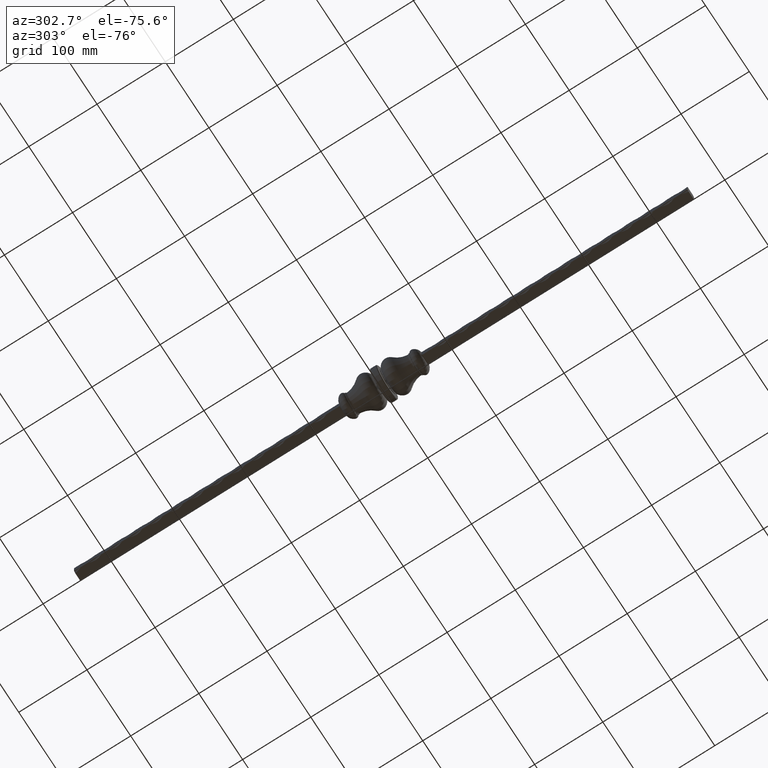
[diagram: clean part render]
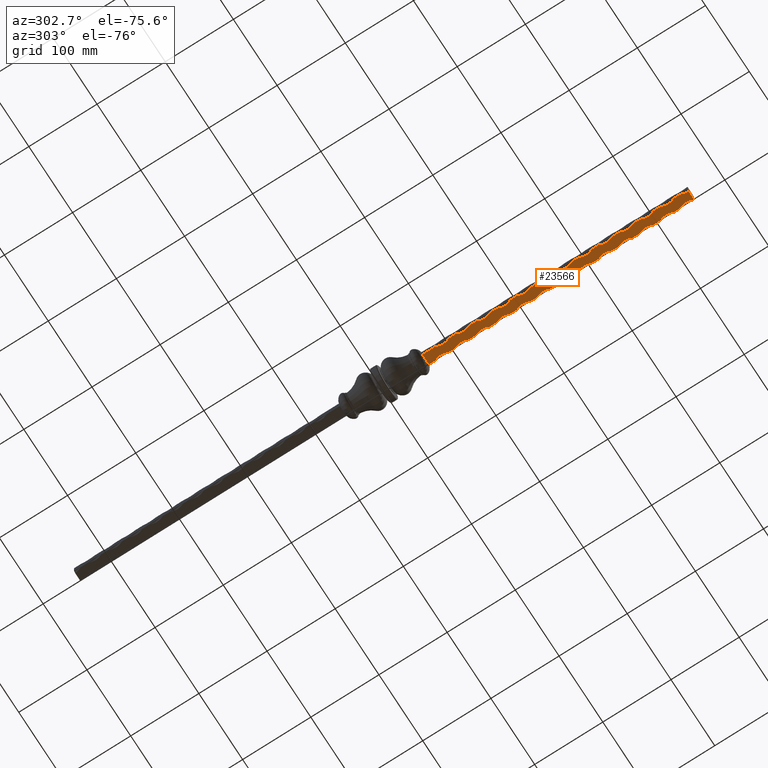
[diagram: same view with one face highlighted and labeled with its STEP entity id]
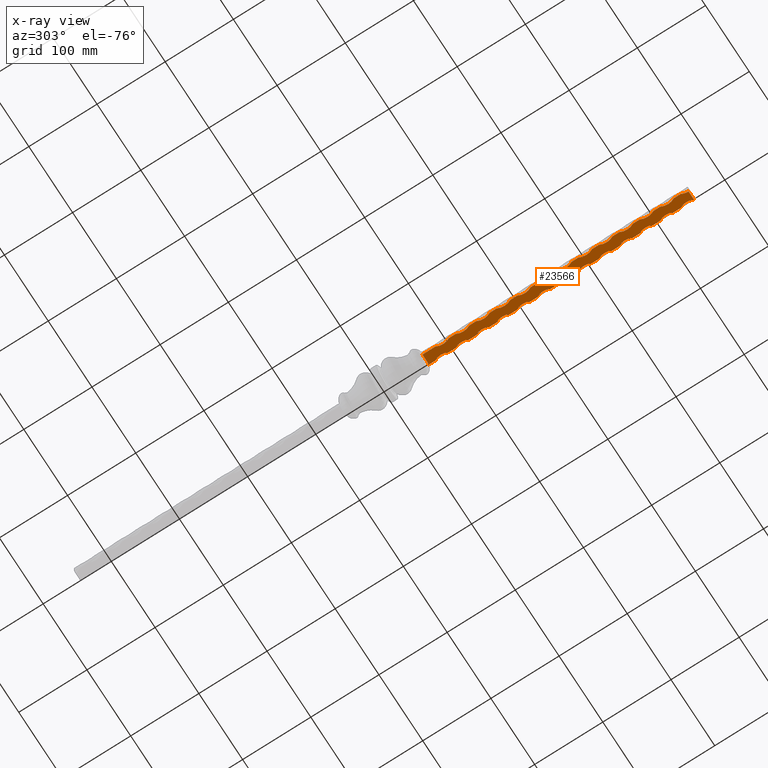
[diagram: x-ray of the same camera — body ghosted, the highlighted face saturated]
A machine part, auxiliary view. The second image highlights one B-rep face of the part: STEP entity #23566.
The next image is the same camera in x-ray: the body ghosted, the highlighted face saturated — about 0% of this face is hidden behind the body in this view.
In plain terms, the highlighted planar face has unit normal (0, 0, 1).
Its self-contained STEP definition (entity closure, byte-faithful):
#17 = CARTESIAN_POINT ( 'NONE',  ( -7.500000000000000000, -190.0000000000000000, -7.500000000000000000 ) ) ;
#96 = ORIENTED_EDGE ( 'NONE', *, *, #1397, .F. ) ;
#198 = CIRCLE ( 'NONE', #23907, 21.25000000000003553 ) ;
#238 = AXIS2_PLACEMENT_3D ( 'NONE', #7114, #4653, #17630 ) ;
#282 = ORIENTED_EDGE ( 'NONE', *, *, #17431, .T. ) ;
#322 = CARTESIAN_POINT ( 'NONE',  ( 5.257826611913633208, -61.17518821496220482, -7.500000000000001776 ) ) ;
#431 = AXIS2_PLACEMENT_3D ( 'NONE', #11790, #20286, #9432 ) ;
#579 = VERTEX_POINT ( 'NONE', #1769 ) ;
#583 = CARTESIAN_POINT ( 'NONE',  ( -5.587195937505664567, -61.12594891179882239, -7.500000000000001776 ) ) ;
#584 = VECTOR ( 'NONE', #19940, 1000.000000000000000 ) ;
#633 = VERTEX_POINT ( 'NONE', #9054 ) ;
#667 = EDGE_CURVE ( 'NONE', #579, #22342, #19952, .T. ) ;
#708 = EDGE_CURVE ( 'NONE', #11900, #20075, #15874, .T. ) ;
#721 = VERTEX_POINT ( 'NONE', #20083 ) ;
#740 = VERTEX_POINT ( 'NONE', #24669 ) ;
#750 = CIRCLE ( 'NONE', #25817, 21.25000000000003197 ) ;
#786 = ORIENTED_EDGE ( 'NONE', *, *, #7387, .T. ) ;
#827 = VECTOR ( 'NONE', #19511, 1000.000000000000000 ) ;
#839 = CARTESIAN_POINT ( 'NONE',  ( -26.25000000000003197, -180.0000000000000000, -7.500000000000000000 ) ) ;
#858 = CARTESIAN_POINT ( 'NONE',  ( 26.25000000000003197, -169.9999999999999716, -7.500000000000000000 ) ) ;
#953 = CARTESIAN_POINT ( 'NONE',  ( -7.500000000000000000, -320.0000000000000000, -7.500000000000000000 ) ) ;
#1122 = CARTESIAN_POINT ( 'NONE',  ( -7.500000000000001776, 450.0000000000000000, -7.500000000000001776 ) ) ;
#1156 = CARTESIAN_POINT ( 'NONE',  ( -26.25000000000003197, -420.0000000000000000, -7.500000000000000000 ) ) ;
#1172 = CARTESIAN_POINT ( 'NONE',  ( 7.500000000000000000, 450.0000000000000000, -7.500000000000001776 ) ) ;
#1216 = CARTESIAN_POINT ( 'NONE',  ( -7.500000000000000000, -139.9999999999999716, -7.500000000000000000 ) ) ;
#1218 = VERTEX_POINT ( 'NONE', #23211 ) ;
#1339 = VERTEX_POINT ( 'NONE', #19548 ) ;
#1397 = EDGE_CURVE ( 'NONE', #8594, #17181, #3353, .T. ) ;
#1550 = EDGE_CURVE ( 'NONE', #7678, #15502, #11801, .T. ) ;
#1637 = VECTOR ( 'NONE', #20370, 1000.000000000000000 ) ;
#1718 = DIRECTION ( 'NONE',  ( 0.000000000000000000, 0.000000000000000000, 1.000000000000000000 ) ) ;
#1769 = CARTESIAN_POINT ( 'NONE',  ( 7.500000000000000000, -120.0000000000000568, -7.500000000000000000 ) ) ;
#1770 = ORIENTED_EDGE ( 'NONE', *, *, #20640, .T. ) ;
#1908 = CARTESIAN_POINT ( 'NONE',  ( -7.500000000000001776, 450.0000000000000000, -7.500000000000001776 ) ) ;
#1974 = EDGE_CURVE ( 'NONE', #20099, #16870, #10809, .T. ) ;
#2032 = CARTESIAN_POINT ( 'NONE',  ( -4.580747457130980749, -61.19999999999999574, -7.500000000000001776 ) ) ;
#2081 = CARTESIAN_POINT ( 'NONE',  ( 5.587195937505697430, -61.12594891179882239, -7.500000000000001776 ) ) ;
#2167 = CARTESIAN_POINT ( 'NONE',  ( -26.25000000000003197, -120.0000000000000568, -7.500000000000000000 ) ) ;
#2193 = CARTESIAN_POINT ( 'NONE',  ( -7.500000000000001776, 450.0000000000000000, -7.500000000000001776 ) ) ;
#2203 = VECTOR ( 'NONE', #26663, 1000.000000000000000 ) ;
#2225 = VERTEX_POINT ( 'NONE', #24816 ) ;
#2278 = VECTOR ( 'NONE', #14296, 1000.000000000000000 ) ;
#2319 = CARTESIAN_POINT ( 'NONE',  ( -26.25000000000003197, -210.0000000000000284, -7.500000000000000000 ) ) ;
#2510 = DIRECTION ( 'NONE',  ( 1.000000000000000000, 0.000000000000000000, 0.000000000000000000 ) ) ;
#2527 = VERTEX_POINT ( 'NONE', #10867 ) ;
#2587 = EDGE_CURVE ( 'NONE', #2701, #14127, #5703, .T. ) ;
#2604 = CIRCLE ( 'NONE', #9043, 21.25000000000003553 ) ;
#2701 = VERTEX_POINT ( 'NONE', #18264 ) ;
#2739 = CARTESIAN_POINT ( 'NONE',  ( -5.587195937505664567, -61.12594891179882239, -7.500000000000001776 ) ) ;
#2809 = ORIENTED_EDGE ( 'NONE', *, *, #22911, .F. ) ;
#2866 = LINE ( 'NONE', #20331, #19399 ) ;
#2943 = EDGE_CURVE ( 'NONE', #16998, #8506, #8081, .T. ) ;
#2978 = DIRECTION ( 'NONE',  ( -0.000000000000000000, -1.000000000000000000, -0.000000000000000000 ) ) ;
#2997 = CARTESIAN_POINT ( 'NONE',  ( -7.500000000000001776, -60.78303146263080947, -7.500000000000001776 ) ) ;
#3004 = VERTEX_POINT ( 'NONE', #19308 ) ;
#3029 = DIRECTION ( 'NONE',  ( 0.000000000000000000, 0.000000000000000000, 1.000000000000000000 ) ) ;
#3140 = ORIENTED_EDGE ( 'NONE', *, *, #12923, .F. ) ;
#3190 = CIRCLE ( 'NONE', #238, 21.25000000000003197 ) ;
#3202 = ORIENTED_EDGE ( 'NONE', *, *, #9616, .F. ) ;
#3342 = ORIENTED_EDGE ( 'NONE', *, *, #27436, .T. ) ;
#3353 = LINE ( 'NONE', #23690, #8084 ) ;
#3398 = EDGE_CURVE ( 'NONE', #27206, #6495, #9711, .T. ) ;
#3558 = ORIENTED_EDGE ( 'NONE', *, *, #18871, .T. ) ;
#3597 = CIRCLE ( 'NONE', #18452, 21.25000000000003553 ) ;
#3639 = CIRCLE ( 'NONE', #18974, 21.25000000000003553 ) ;
#3646 = EDGE_CURVE ( 'NONE', #1218, #7678, #6008, .T. ) ;
#3715 = VECTOR ( 'NONE', #26784, 1000.000000000000000 ) ;
#3806 = CARTESIAN_POINT ( 'NONE',  ( -7.500000000000000000, -290.0000000000000000, -7.500000000000000000 ) ) ;
#3823 = DIRECTION ( 'NONE',  ( 1.000000000000000000, 0.000000000000000000, 0.000000000000000000 ) ) ;
#3840 = AXIS2_PLACEMENT_3D ( 'NONE', #25403, #17001, #8256 ) ;
#4010 = DIRECTION ( 'NONE',  ( 0.000000000000000000, 0.000000000000000000, 1.000000000000000000 ) ) ;
#4054 = VECTOR ( 'NONE', #4707, 1000.000000000000000 ) ;
#4346 = CARTESIAN_POINT ( 'NONE',  ( -7.500000000000000000, -200.0000000000000000, -7.500000000000000000 ) ) ;
#4358 = CARTESIAN_POINT ( 'NONE',  ( -7.500000000000000000, -100.0000000000000284, -7.500000000000000000 ) ) ;
#4363 = ORIENTED_EDGE ( 'NONE', *, *, #10045, .T. ) ;
#4364 = DIRECTION ( 'NONE',  ( -0.000000000000000000, -1.000000000000000000, -0.000000000000000000 ) ) ;
#4404 = VERTEX_POINT ( 'NONE', #18273 ) ;
#4474 = EDGE_CURVE ( 'NONE', #4404, #15381, #9663, .T. ) ;
#4633 = DIRECTION ( 'NONE',  ( 1.000000000000000000, 0.000000000000000000, 0.000000000000000000 ) ) ;
#4653 = DIRECTION ( 'NONE',  ( -0.000000000000000000, -0.000000000000000000, -1.000000000000000000 ) ) ;
#4707 = DIRECTION ( 'NONE',  ( -1.000000000000000000, -0.000000000000000000, -0.000000000000000000 ) ) ;
#4756 = AXIS2_PLACEMENT_3D ( 'NONE', #18152, #20464, #3823 ) ;
#4790 = ORIENTED_EDGE ( 'NONE', *, *, #27934, .T. ) ;
#4806 = ORIENTED_EDGE ( 'NONE', *, *, #708, .T. ) ;
#4879 = LINE ( 'NONE', #8676, #827 ) ;
#4882 = VERTEX_POINT ( 'NONE', #6893 ) ;
#4995 = CARTESIAN_POINT ( 'NONE',  ( 7.500000000000000000, 450.0000000000000000, -7.500000000000001776 ) ) ;
#5071 = VECTOR ( 'NONE', #20636, 1000.000000000000000 ) ;
#5105 = AXIS2_PLACEMENT_3D ( 'NONE', #10437, #4010, #5915 ) ;
#5113 = EDGE_CURVE ( 'NONE', #26566, #721, #198, .T. ) ;
#5171 = VERTEX_POINT ( 'NONE', #13346 ) ;
#5236 = VECTOR ( 'NONE', #12960, 1000.000000000000000 ) ;
#5382 = VERTEX_POINT ( 'NONE', #953 ) ;
#5384 = AXIS2_PLACEMENT_3D ( 'NONE', #18797, #20731, #8056 ) ;
#5433 = CIRCLE ( 'NONE', #431, 21.25000000000003553 ) ;
#5488 = VECTOR ( 'NONE', #10705, 1000.000000000000000 ) ;
#5557 = DIRECTION ( 'NONE',  ( -0.000000000000000000, -0.000000000000000000, -1.000000000000000000 ) ) ;
#5600 = CIRCLE ( 'NONE', #10686, 21.25000000000003553 ) ;
#5619 = LINE ( 'NONE', #20012, #18094 ) ;
#5655 = VECTOR ( 'NONE', #8338, 1000.000000000000000 ) ;
#5703 = CIRCLE ( 'NONE', #8197, 21.25000000000003197 ) ;
#5806 = DIRECTION ( 'NONE',  ( -0.000000000000000000, -0.000000000000000000, -1.000000000000000000 ) ) ;
#5889 = DIRECTION ( 'NONE',  ( -0.000000000000000000, -0.000000000000000000, -1.000000000000000000 ) ) ;
#5915 = DIRECTION ( 'NONE',  ( 1.000000000000000000, 0.000000000000000000, 0.000000000000000000 ) ) ;
#5976 = DIRECTION ( 'NONE',  ( 1.000000000000000000, 0.000000000000000000, 0.000000000000000000 ) ) ;
#5996 = VERTEX_POINT ( 'NONE', #10448 ) ;
#6008 = LINE ( 'NONE', #18356, #22602 ) ;
#6089 = CARTESIAN_POINT ( 'NONE',  ( 26.25000000000003197, -350.0000000000000568, -7.500000000000000000 ) ) ;
#6214 = ORIENTED_EDGE ( 'NONE', *, *, #19891, .T. ) ;
#6316 = EDGE_CURVE ( 'NONE', #2527, #10665, #18809, .T. ) ;
#6354 = EDGE_CURVE ( 'NONE', #5382, #16293, #16771, .T. ) ;
#6407 = AXIS2_PLACEMENT_3D ( 'NONE', #858, #3029, #22424 ) ;
#6491 = CARTESIAN_POINT ( 'NONE',  ( 7.500000000000000000, -149.9999999999999716, -7.500000000000000000 ) ) ;
#6495 = VERTEX_POINT ( 'NONE', #3806 ) ;
#6621 = DIRECTION ( 'NONE',  ( 0.000000000000000000, 0.000000000000000000, 1.000000000000000000 ) ) ;
#6644 = DIRECTION ( 'NONE',  ( -0.000000000000000000, -1.000000000000000000, -0.000000000000000000 ) ) ;
#6654 = CARTESIAN_POINT ( 'NONE',  ( 7.500000000000000000, 450.0000000000000000, -7.500000000000001776 ) ) ;
#6679 = EDGE_CURVE ( 'NONE', #14127, #14545, #22234, .T. ) ;
#6680 = CIRCLE ( 'NONE', #25794, 21.25000000000003197 ) ;
#6711 = CARTESIAN_POINT ( 'NONE',  ( 7.499999999999996447, -340.0000000000000000, -7.500000000000000000 ) ) ;
#6750 = CARTESIAN_POINT ( 'NONE',  ( 7.500000000000000000, -450.0000000000000000, -7.500000000000001776 ) ) ;
#6868 = CARTESIAN_POINT ( 'NONE',  ( -26.25000000000003197, -269.9999999999999432, -7.500000000000000000 ) ) ;
#6893 = CARTESIAN_POINT ( 'NONE',  ( 7.500000000000000000, -269.9999999999999432, -7.500000000000000000 ) ) ;
#6979 = ORIENTED_EDGE ( 'NONE', *, *, #11503, .T. ) ;
#7012 = CIRCLE ( 'NONE', #7595, 21.25000000000003197 ) ;
#7015 = CARTESIAN_POINT ( 'NONE',  ( -7.500000000000000000, -110.0000000000000426, -7.500000000000000000 ) ) ;
#7087 = VERTEX_POINT ( 'NONE', #7112 ) ;
#7090 = CARTESIAN_POINT ( 'NONE',  ( -7.500000000000000000, -340.0000000000000000, -7.500000000000000000 ) ) ;
#7109 = EDGE_CURVE ( 'NONE', #16998, #7603, #5619, .T. ) ;
#7112 = CARTESIAN_POINT ( 'NONE',  ( -7.500000000000000000, -379.9999999999999432, -7.500000000000000000 ) ) ;
#7114 = CARTESIAN_POINT ( 'NONE',  ( -26.25000000000003197, -149.9999999999999716, -7.500000000000000000 ) ) ;
#7227 = EDGE_CURVE ( 'NONE', #25648, #15630, #7012, .T. ) ;
#7310 = VECTOR ( 'NONE', #16112, 1000.000000000000000 ) ;
#7347 = CARTESIAN_POINT ( 'NONE',  ( -26.25000000000003197, -90.00000000000002842, -7.500000000000000000 ) ) ;
#7387 = EDGE_CURVE ( 'NONE', #8729, #4404, #15389, .T. ) ;
#7398 = VECTOR ( 'NONE', #18472, 1000.000000000000000 ) ;
#7595 = AXIS2_PLACEMENT_3D ( 'NONE', #11701, #5557, #27281 ) ;
#7603 = VERTEX_POINT ( 'NONE', #18995 ) ;
#7640 = LINE ( 'NONE', #20892, #27961 ) ;
#7678 = VERTEX_POINT ( 'NONE', #27696 ) ;
#7792 = CARTESIAN_POINT ( 'NONE',  ( -7.500000000000001776, 450.0000000000000000, -7.500000000000001776 ) ) ;
#8056 = DIRECTION ( 'NONE',  ( 1.000000000000000000, 0.000000000000000000, 0.000000000000000000 ) ) ;
#8081 =( BOUNDED_CURVE ( )  B_SPLINE_CURVE ( 3, ( #2032, #8658, #21526, #23627 ),
 .UNSPECIFIED., .F., .F. ) 
 B_SPLINE_CURVE_WITH_KNOTS ( ( 4, 4 ),
 ( 1.570796326794896780, 1.819852973398392360 ),
 .UNSPECIFIED. ) 
 CURVE ( )  GEOMETRIC_REPRESENTATION_ITEM ( )  RATIONAL_B_SPLINE_CURVE ( ( 1.000000000000000000, 0.9948375753481484285, 0.9948375753481484285, 1.000000000000000000 ) ) 
 REPRESENTATION_ITEM ( '' )  );
#8084 = VECTOR ( 'NONE', #4364, 1000.000000000000000 ) ;
#8086 = VECTOR ( 'NONE', #6644, 1000.000000000000000 ) ;
#8143 = EDGE_CURVE ( 'NONE', #721, #10193, #16030, .T. ) ;
#8197 = AXIS2_PLACEMENT_3D ( 'NONE', #839, #20003, #9249 ) ;
#8217 = CARTESIAN_POINT ( 'NONE',  ( 5.587195937505697430, -61.12594891179882239, -7.500000000000001776 ) ) ;
#8256 = DIRECTION ( 'NONE',  ( 1.000000000000000000, 0.000000000000000000, 0.000000000000000000 ) ) ;
#8259 = DIRECTION ( 'NONE',  ( 0.000000000000000000, 0.000000000000000000, 1.000000000000000000 ) ) ;
#8326 = EDGE_CURVE ( 'NONE', #740, #21580, #7640, .T. ) ;
#8338 = DIRECTION ( 'NONE',  ( -0.000000000000000000, -1.000000000000000000, -0.000000000000000000 ) ) ;
#8506 = VERTEX_POINT ( 'NONE', #583 ) ;
#8542 = ORIENTED_EDGE ( 'NONE', *, *, #1550, .T. ) ;
#8548 = ORIENTED_EDGE ( 'NONE', *, *, #13203, .F. ) ;
#8594 = VERTEX_POINT ( 'NONE', #13772 ) ;
#8612 =( BOUNDED_CURVE ( )  B_SPLINE_CURVE ( 3, ( #26577, #322, #26285, #22065 ),
 .UNSPECIFIED., .F., .F. ) 
 B_SPLINE_CURVE_WITH_KNOTS ( ( 4, 4 ),
 ( 1.321739680191401201, 1.570796326794896780 ),
 .UNSPECIFIED. ) 
 CURVE ( )  GEOMETRIC_REPRESENTATION_ITEM ( )  RATIONAL_B_SPLINE_CURVE ( ( 1.000000000000000000, 0.9948375753481484285, 0.9948375753481484285, 1.000000000000000000 ) ) 
 REPRESENTATION_ITEM ( '' )  );
#8658 = CARTESIAN_POINT ( 'NONE',  ( -4.920602893082759444, -61.19999999999999574, -7.500000000000001776 ) ) ;
#8667 = CARTESIAN_POINT ( 'NONE',  ( 26.25000000000003197, -290.0000000000000000, -7.500000000000000000 ) ) ;
#8676 = CARTESIAN_POINT ( 'NONE',  ( -7.500000000000001776, 450.0000000000000000, -7.500000000000001776 ) ) ;
#8713 = VERTEX_POINT ( 'NONE', #20875 ) ;
#8729 = VERTEX_POINT ( 'NONE', #23069 ) ;
#8745 = CARTESIAN_POINT ( 'NONE',  ( 7.499999999999996447, -100.0000000000000284, -7.500000000000000000 ) ) ;
#8762 = CARTESIAN_POINT ( 'NONE',  ( -7.500000000000000000, -350.0000000000000568, -7.500000000000000000 ) ) ;
#8799 = LINE ( 'NONE', #13833, #1637 ) ;
#8930 = AXIS2_PLACEMENT_3D ( 'NONE', #23939, #6621, #4633 ) ;
#9002 = ORIENTED_EDGE ( 'NONE', *, *, #6354, .F. ) ;
#9043 = AXIS2_PLACEMENT_3D ( 'NONE', #21482, #16890, #28061 ) ;
#9054 = CARTESIAN_POINT ( 'NONE',  ( 7.499999999999996447, -219.9999999999999147, -7.500000000000000000 ) ) ;
#9126 = EDGE_CURVE ( 'NONE', #633, #26450, #14009, .T. ) ;
#9228 = EDGE_CURVE ( 'NONE', #7087, #8594, #19065, .T. ) ;
#9249 = DIRECTION ( 'NONE',  ( 1.000000000000000000, 0.000000000000000000, 0.000000000000000000 ) ) ;
#9337 = EDGE_CURVE ( 'NONE', #8713, #5996, #2866, .T. ) ;
#9432 = DIRECTION ( 'NONE',  ( 1.000000000000000000, 0.000000000000000000, 0.000000000000000000 ) ) ;
#9440 = AXIS2_PLACEMENT_3D ( 'NONE', #24174, #26092, #2510 ) ;
#9616 = EDGE_CURVE ( 'NONE', #17637, #10242, #3190, .T. ) ;
#9663 = LINE ( 'NONE', #27004, #7310 ) ;
#9711 = LINE ( 'NONE', #1908, #5655 ) ;
#9721 = AXIS2_PLACEMENT_3D ( 'NONE', #7347, #22474, #16001 ) ;
#10045 = EDGE_CURVE ( 'NONE', #20130, #740, #23561, .T. ) ;
#10193 = VERTEX_POINT ( 'NONE', #22030 ) ;
#10211 = VERTEX_POINT ( 'NONE', #7015 ) ;
#10242 = VERTEX_POINT ( 'NONE', #13575 ) ;
#10278 = ORIENTED_EDGE ( 'NONE', *, *, #25173, .T. ) ;
#10296 = CIRCLE ( 'NONE', #8930, 21.25000000000003553 ) ;
#10299 = ORIENTED_EDGE ( 'NONE', *, *, #3646, .T. ) ;
#10437 = CARTESIAN_POINT ( 'NONE',  ( 26.25000000000003197, -440.0000000000000000, -7.500000000000000000 ) ) ;
#10448 = CARTESIAN_POINT ( 'NONE',  ( -7.500000000000000000, -229.9999999999999147, -7.500000000000000000 ) ) ;
#10475 = EDGE_CURVE ( 'NONE', #14138, #10211, #21053, .T. ) ;
#10481 = CARTESIAN_POINT ( 'NONE',  ( 7.500000000000000000, -239.9999999999999432, -7.500000000000000000 ) ) ;
#10510 = CARTESIAN_POINT ( 'NONE',  ( -7.500000000000000000, -259.9999999999999432, -7.500000000000000000 ) ) ;
#10543 = DIRECTION ( 'NONE',  ( 0.000000000000000000, 0.000000000000000000, 1.000000000000000000 ) ) ;
#10642 = ORIENTED_EDGE ( 'NONE', *, *, #667, .T. ) ;
#10649 = EDGE_CURVE ( 'NONE', #14545, #8713, #750, .T. ) ;
#10665 = VERTEX_POINT ( 'NONE', #8745 ) ;
#10686 = AXIS2_PLACEMENT_3D ( 'NONE', #22725, #20611, #11932 ) ;
#10705 = DIRECTION ( 'NONE',  ( -0.000000000000000000, -1.000000000000000000, -0.000000000000000000 ) ) ;
#10809 = LINE ( 'NONE', #16451, #5071 ) ;
#10867 = CARTESIAN_POINT ( 'NONE',  ( 7.500000000000000000, -90.00000000000002842, -7.500000000000000000 ) ) ;
#10899 = ORIENTED_EDGE ( 'NONE', *, *, #20788, .F. ) ;
#10969 = EDGE_CURVE ( 'NONE', #18976, #25648, #22763, .T. ) ;
#11010 = CARTESIAN_POINT ( 'NONE',  ( 7.500000000000000000, -330.0000000000000000, -7.500000000000000000 ) ) ;
#11026 = VERTEX_POINT ( 'NONE', #10510 ) ;
#11153 = CARTESIAN_POINT ( 'NONE',  ( -7.500000000000000000, -430.0000000000000000, -7.500000000000000000 ) ) ;
#11345 = AXIS2_PLACEMENT_3D ( 'NONE', #25498, #5889, #5976 ) ;
#11455 = CARTESIAN_POINT ( 'NONE',  ( -5.000000000000000888, -450.0000000000000000, -7.500000000000000000 ) ) ;
#11493 = VECTOR ( 'NONE', #23018, 1000.000000000000000 ) ;
#11503 = EDGE_CURVE ( 'NONE', #2225, #15601, #5433, .T. ) ;
#11520 = EDGE_CURVE ( 'NONE', #15381, #21391, #27821, .T. ) ;
#11559 = LINE ( 'NONE', #25163, #15923 ) ;
#11561 = EDGE_CURVE ( 'NONE', #5996, #5171, #20998, .T. ) ;
#11573 = PLANE ( 'NONE',  #24401 ) ;
#11633 = CARTESIAN_POINT ( 'NONE',  ( 7.500000000000000000, -210.0000000000000284, -7.500000000000000000 ) ) ;
#11649 = DIRECTION ( 'NONE',  ( -0.000000000000000000, -0.000000000000000000, -1.000000000000000000 ) ) ;
#11701 = CARTESIAN_POINT ( 'NONE',  ( -26.25000000000003197, -450.0000000000000000, -7.500000000000000000 ) ) ;
#11790 = CARTESIAN_POINT ( 'NONE',  ( 26.25000000000003197, -200.0000000000000000, -7.500000000000000000 ) ) ;
#11801 = CIRCLE ( 'NONE', #5105, 21.25000000000003553 ) ;
#11827 = ORIENTED_EDGE ( 'NONE', *, *, #3398, .F. ) ;
#11900 = VERTEX_POINT ( 'NONE', #20651 ) ;
#11932 = DIRECTION ( 'NONE',  ( 1.000000000000000000, 0.000000000000000000, 0.000000000000000000 ) ) ;
#11935 = CARTESIAN_POINT ( 'NONE',  ( -7.500000000000000000, -410.0000000000000000, -7.500000000000000000 ) ) ;
#12043 = LINE ( 'NONE', #22268, #26651 ) ;
#12211 = DIRECTION ( 'NONE',  ( -0.000000000000000000, -1.000000000000000000, -0.000000000000000000 ) ) ;
#12297 = ORIENTED_EDGE ( 'NONE', *, *, #9228, .F. ) ;
#12455 = LINE ( 'NONE', #22795, #7398 ) ;
#12626 = ORIENTED_EDGE ( 'NONE', *, *, #20977, .T. ) ;
#12702 = CARTESIAN_POINT ( 'NONE',  ( 26.25000000000003197, -80.00000000000001421, -7.500000000000000000 ) ) ;
#12824 = ORIENTED_EDGE ( 'NONE', *, *, #11561, .F. ) ;
#12923 = EDGE_CURVE ( 'NONE', #23123, #7087, #17698, .T. ) ;
#12960 = DIRECTION ( 'NONE',  ( -0.000000000000000000, -1.000000000000000000, -0.000000000000000000 ) ) ;
#12982 = CIRCLE ( 'NONE', #11345, 21.25000000000003197 ) ;
#12989 = CIRCLE ( 'NONE', #22516, 21.25000000000003197 ) ;
#13060 = CARTESIAN_POINT ( 'NONE',  ( 7.499999999999996447, -310.0000000000000000, -7.500000000000000000 ) ) ;
#13080 = CARTESIAN_POINT ( 'NONE',  ( -7.500000000000000000, -440.0000000000000000, -7.500000000000000000 ) ) ;
#13203 = EDGE_CURVE ( 'NONE', #10242, #2701, #4879, .T. ) ;
#13268 = VERTEX_POINT ( 'NONE', #8762 ) ;
#13346 = CARTESIAN_POINT ( 'NONE',  ( -7.500000000000000000, -249.9999999999999432, -7.500000000000000000 ) ) ;
#13426 = CARTESIAN_POINT ( 'NONE',  ( 26.25000000000003197, -259.9999999999999432, -7.500000000000000000 ) ) ;
#13575 = CARTESIAN_POINT ( 'NONE',  ( -7.500000000000000000, -159.9999999999999716, -7.500000000000000000 ) ) ;
#13623 = VERTEX_POINT ( 'NONE', #6491 ) ;
#13631 = DIRECTION ( 'NONE',  ( -0.000000000000000000, -1.000000000000000000, -0.000000000000000000 ) ) ;
#13709 = DIRECTION ( 'NONE',  ( -0.000000000000000000, -1.000000000000000000, -0.000000000000000000 ) ) ;
#13772 = CARTESIAN_POINT ( 'NONE',  ( -7.500000000000000000, -399.9999999999999432, -7.500000000000000000 ) ) ;
#13803 = DIRECTION ( 'NONE',  ( 1.000000000000000000, 0.000000000000000000, 0.000000000000000000 ) ) ;
#13833 = CARTESIAN_POINT ( 'NONE',  ( 7.500000000000000000, 450.0000000000000000, -7.500000000000001776 ) ) ;
#13856 = ORIENTED_EDGE ( 'NONE', *, *, #19044, .F. ) ;
#14009 = CIRCLE ( 'NONE', #4756, 21.25000000000003553 ) ;
#14024 = AXIS2_PLACEMENT_3D ( 'NONE', #2167, #25855, #15013 ) ;
#14127 = VERTEX_POINT ( 'NONE', #17 ) ;
#14138 = VERTEX_POINT ( 'NONE', #4358 ) ;
#14296 = DIRECTION ( 'NONE',  ( -0.000000000000000000, -1.000000000000000000, -0.000000000000000000 ) ) ;
#14368 = CARTESIAN_POINT ( 'NONE',  ( 7.499999999999996447, -399.9999999999999432, -7.500000000000000000 ) ) ;
#14545 = VERTEX_POINT ( 'NONE', #4346 ) ;
#14585 = VERTEX_POINT ( 'NONE', #15573 ) ;
#14760 = EDGE_CURVE ( 'NONE', #26620, #5382, #11559, .T. ) ;
#14814 = FACE_OUTER_BOUND ( 'NONE', #24329, .T. ) ;
#14940 = VERTEX_POINT ( 'NONE', #21912 ) ;
#14981 = DIRECTION ( 'NONE',  ( -0.000000000000000000, -1.000000000000000000, -0.000000000000000000 ) ) ;
#15013 = DIRECTION ( 'NONE',  ( 1.000000000000000000, 0.000000000000000000, 0.000000000000000000 ) ) ;
#15061 = EDGE_CURVE ( 'NONE', #3004, #17637, #17595, .T. ) ;
#15270 = ORIENTED_EDGE ( 'NONE', *, *, #6316, .T. ) ;
#15381 = VERTEX_POINT ( 'NONE', #13060 ) ;
#15389 = CIRCLE ( 'NONE', #18220, 21.25000000000003553 ) ;
#15415 = ORIENTED_EDGE ( 'NONE', *, *, #24027, .T. ) ;
#15426 = EDGE_CURVE ( 'NONE', #20130, #7603, #8612, .T. ) ;
#15502 = VERTEX_POINT ( 'NONE', #6750 ) ;
#15573 = CARTESIAN_POINT ( 'NONE',  ( 7.499999999999996447, -249.9999999999999432, -7.500000000000000000 ) ) ;
#15594 = DIRECTION ( 'NONE',  ( 1.000000000000000000, 0.000000000000000000, 0.000000000000000000 ) ) ;
#15595 = CARTESIAN_POINT ( 'NONE',  ( -7.500000000000001776, 450.0000000000000000, -7.500000000000001776 ) ) ;
#15601 = VERTEX_POINT ( 'NONE', #11633 ) ;
#15630 = VERTEX_POINT ( 'NONE', #11455 ) ;
#15661 = ORIENTED_EDGE ( 'NONE', *, *, #25714, .T. ) ;
#15794 = EDGE_CURVE ( 'NONE', #10211, #3004, #25770, .T. ) ;
#15829 = ORIENTED_EDGE ( 'NONE', *, *, #9126, .T. ) ;
#15874 = LINE ( 'NONE', #4995, #20275 ) ;
#15923 = VECTOR ( 'NONE', #27547, 1000.000000000000000 ) ;
#15934 = ORIENTED_EDGE ( 'NONE', *, *, #10969, .F. ) ;
#16001 = DIRECTION ( 'NONE',  ( 1.000000000000000000, 0.000000000000000000, 0.000000000000000000 ) ) ;
#16030 = LINE ( 'NONE', #24171, #2203 ) ;
#16112 = DIRECTION ( 'NONE',  ( -0.000000000000000000, -1.000000000000000000, -0.000000000000000000 ) ) ;
#16293 = VERTEX_POINT ( 'NONE', #7090 ) ;
#16358 = DIRECTION ( 'NONE',  ( 1.000000000000000000, 0.000000000000000000, 0.000000000000000000 ) ) ;
#16402 = ORIENTED_EDGE ( 'NONE', *, *, #7227, .F. ) ;
#16451 = CARTESIAN_POINT ( 'NONE',  ( -7.500000000000001776, 450.0000000000000000, -7.500000000000001776 ) ) ;
#16462 = ORIENTED_EDGE ( 'NONE', *, *, #8143, .T. ) ;
#16725 = EDGE_CURVE ( 'NONE', #14940, #2225, #8799, .T. ) ;
#16771 = CIRCLE ( 'NONE', #5384, 21.25000000000003197 ) ;
#16870 = VERTEX_POINT ( 'NONE', #19103 ) ;
#16890 = DIRECTION ( 'NONE',  ( 0.000000000000000000, 0.000000000000000000, 1.000000000000000000 ) ) ;
#16998 = VERTEX_POINT ( 'NONE', #17665 ) ;
#17001 = DIRECTION ( 'NONE',  ( 0.000000000000000000, 0.000000000000000000, 1.000000000000000000 ) ) ;
#17058 = CARTESIAN_POINT ( 'NONE',  ( -7.500000000000000000, -370.0000000000000568, -7.500000000000000000 ) ) ;
#17067 = EDGE_CURVE ( 'NONE', #11026, #27206, #21642, .T. ) ;
#17123 = DIRECTION ( 'NONE',  ( 1.000000000000000000, 0.000000000000000000, 0.000000000000000000 ) ) ;
#17148 =( BOUNDED_CURVE ( )  B_SPLINE_CURVE ( 3, ( #2997, #17796, #18070, #2739 ),
 .UNSPECIFIED., .F., .F. ) 
 B_SPLINE_CURVE_WITH_KNOTS ( ( 4, 4 ),
 ( 4.369369659922992533, 4.463332333781194095 ),
 .UNSPECIFIED. ) 
 CURVE ( )  GEOMETRIC_REPRESENTATION_ITEM ( )  RATIONAL_B_SPLINE_CURVE ( ( 1.000000000000000000, 0.9992643866483557069, 0.9992643866483557069, 1.000000000000000000 ) ) 
 REPRESENTATION_ITEM ( '' )  );
#17165 = ORIENTED_EDGE ( 'NONE', *, *, #15061, .F. ) ;
#17181 = VERTEX_POINT ( 'NONE', #11935 ) ;
#17223 = AXIS2_PLACEMENT_3D ( 'NONE', #26802, #18176, #20388 ) ;
#17354 = CARTESIAN_POINT ( 'NONE',  ( 7.500000000000000000, 450.0000000000000000, -7.500000000000001776 ) ) ;
#17431 = EDGE_CURVE ( 'NONE', #4882, #8729, #19560, .T. ) ;
#17499 = ORIENTED_EDGE ( 'NONE', *, *, #2587, .F. ) ;
#17595 = LINE ( 'NONE', #26869, #18263 ) ;
#17630 = DIRECTION ( 'NONE',  ( 1.000000000000000000, 0.000000000000000000, 0.000000000000000000 ) ) ;
#17637 = VERTEX_POINT ( 'NONE', #1216 ) ;
#17665 = CARTESIAN_POINT ( 'NONE',  ( -4.580747457130980749, -61.19999999999999574, -7.500000000000001776 ) ) ;
#17684 = EDGE_CURVE ( 'NONE', #15601, #633, #12455, .T. ) ;
#17698 = LINE ( 'NONE', #1122, #19429 ) ;
#17774 = DIRECTION ( 'NONE',  ( 0.000000000000000000, 0.000000000000000000, 1.000000000000000000 ) ) ;
#17796 = CARTESIAN_POINT ( 'NONE',  ( -6.871773093280885369, -60.91490900722244817, -7.500000000000000888 ) ) ;
#17950 = CARTESIAN_POINT ( 'NONE',  ( -7.500000000000001776, 450.0000000000000000, -7.500000000000001776 ) ) ;
#17987 = DIRECTION ( 'NONE',  ( 1.000000000000000000, 0.000000000000000000, 0.000000000000000000 ) ) ;
#18070 = CARTESIAN_POINT ( 'NONE',  ( -6.233702365769647535, -61.02929897039598472, -7.500000000000000888 ) ) ;
#18075 = EDGE_CURVE ( 'NONE', #16870, #14138, #26032, .T. ) ;
#18094 = VECTOR ( 'NONE', #24608, 1000.000000000000000 ) ;
#18152 = CARTESIAN_POINT ( 'NONE',  ( 26.25000000000003197, -229.9999999999999147, -7.500000000000000000 ) ) ;
#18175 = AXIS2_PLACEMENT_3D ( 'NONE', #6868, #24176, #24273 ) ;
#18176 = DIRECTION ( 'NONE',  ( 0.000000000000000000, 0.000000000000000000, 1.000000000000000000 ) ) ;
#18220 = AXIS2_PLACEMENT_3D ( 'NONE', #8667, #10543, #17123 ) ;
#18263 = VECTOR ( 'NONE', #2978, 1000.000000000000000 ) ;
#18264 = CARTESIAN_POINT ( 'NONE',  ( -7.500000000000000000, -169.9999999999999716, -7.500000000000000000 ) ) ;
#18273 = CARTESIAN_POINT ( 'NONE',  ( 7.500000000000000000, -300.0000000000000000, -7.500000000000000000 ) ) ;
#18356 = CARTESIAN_POINT ( 'NONE',  ( 7.500000000000000000, 450.0000000000000000, -7.500000000000001776 ) ) ;
#18452 = AXIS2_PLACEMENT_3D ( 'NONE', #12702, #1718, #27883 ) ;
#18472 = DIRECTION ( 'NONE',  ( -0.000000000000000000, -1.000000000000000000, -0.000000000000000000 ) ) ;
#18587 = CARTESIAN_POINT ( 'NONE',  ( -7.500000000000001776, -60.78303146263080947, -7.500000000000001776 ) ) ;
#18695 = DIRECTION ( 'NONE',  ( -0.000000000000000000, -1.000000000000000000, -0.000000000000000000 ) ) ;
#18797 = CARTESIAN_POINT ( 'NONE',  ( -26.25000000000003197, -330.0000000000000000, -7.500000000000000000 ) ) ;
#18809 = LINE ( 'NONE', #1172, #2278 ) ;
#18871 = EDGE_CURVE ( 'NONE', #22342, #13623, #2604, .T. ) ;
#18901 = DIRECTION ( 'NONE',  ( 1.000000000000000000, 0.000000000000000000, 0.000000000000000000 ) ) ;
#18974 = AXIS2_PLACEMENT_3D ( 'NONE', #13426, #19749, #15594 ) ;
#18976 = VERTEX_POINT ( 'NONE', #11153 ) ;
#18982 = CARTESIAN_POINT ( 'NONE',  ( 7.500000000000000000, 450.0000000000000000, -7.500000000000001776 ) ) ;
#18995 = CARTESIAN_POINT ( 'NONE',  ( 4.580747457131012723, -61.19999999999999574, -7.500000000000001776 ) ) ;
#19044 = EDGE_CURVE ( 'NONE', #16293, #13268, #25313, .T. ) ;
#19065 = CIRCLE ( 'NONE', #9440, 21.25000000000003197 ) ;
#19103 = CARTESIAN_POINT ( 'NONE',  ( -7.500000000000000000, -80.00000000000001421, -7.500000000000000000 ) ) ;
#19221 = AXIS2_PLACEMENT_3D ( 'NONE', #22687, #24514, #17987 ) ;
#19308 = CARTESIAN_POINT ( 'NONE',  ( -7.500000000000000000, -130.0000000000000568, -7.500000000000000000 ) ) ;
#19320 = ORIENTED_EDGE ( 'NONE', *, *, #15794, .F. ) ;
#19399 = VECTOR ( 'NONE', #13709, 1000.000000000000000 ) ;
#19415 = ORIENTED_EDGE ( 'NONE', *, *, #14760, .F. ) ;
#19429 = VECTOR ( 'NONE', #24695, 1000.000000000000000 ) ;
#19490 = VECTOR ( 'NONE', #24618, 1000.000000000000000 ) ;
#19511 = DIRECTION ( 'NONE',  ( -0.000000000000000000, -1.000000000000000000, -0.000000000000000000 ) ) ;
#19548 = CARTESIAN_POINT ( 'NONE',  ( 7.499999999999996447, -159.9999999999999716, -7.500000000000000000 ) ) ;
#19560 = LINE ( 'NONE', #17354, #8086 ) ;
#19601 = ORIENTED_EDGE ( 'NONE', *, *, #1974, .F. ) ;
#19749 = DIRECTION ( 'NONE',  ( 0.000000000000000000, 0.000000000000000000, 1.000000000000000000 ) ) ;
#19891 = EDGE_CURVE ( 'NONE', #10665, #579, #5600, .T. ) ;
#19940 = DIRECTION ( 'NONE',  ( -0.000000000000000000, -1.000000000000000000, -0.000000000000000000 ) ) ;
#19952 = LINE ( 'NONE', #22112, #3715 ) ;
#20003 = DIRECTION ( 'NONE',  ( -0.000000000000000000, -0.000000000000000000, -1.000000000000000000 ) ) ;
#20012 = CARTESIAN_POINT ( 'NONE',  ( -7.500000000000001776, -61.19999999999997442, -7.500000000000001776 ) ) ;
#20025 = CARTESIAN_POINT ( 'NONE',  ( -7.500000000000001776, 450.0000000000000000, -7.500000000000001776 ) ) ;
#20038 = ORIENTED_EDGE ( 'NONE', *, *, #18075, .F. ) ;
#20075 = VERTEX_POINT ( 'NONE', #14368 ) ;
#20083 = CARTESIAN_POINT ( 'NONE',  ( 7.500000000000000000, -360.0000000000000568, -7.500000000000000000 ) ) ;
#20099 = VERTEX_POINT ( 'NONE', #18587 ) ;
#20130 = VERTEX_POINT ( 'NONE', #2081 ) ;
#20275 = VECTOR ( 'NONE', #26527, 1000.000000000000000 ) ;
#20286 = DIRECTION ( 'NONE',  ( 0.000000000000000000, 0.000000000000000000, 1.000000000000000000 ) ) ;
#20331 = CARTESIAN_POINT ( 'NONE',  ( -7.500000000000001776, 450.0000000000000000, -7.500000000000001776 ) ) ;
#20370 = DIRECTION ( 'NONE',  ( -0.000000000000000000, -1.000000000000000000, -0.000000000000000000 ) ) ;
#20388 = DIRECTION ( 'NONE',  ( 1.000000000000000000, 0.000000000000000000, 0.000000000000000000 ) ) ;
#20430 = LINE ( 'NONE', #6654, #5236 ) ;
#20464 = DIRECTION ( 'NONE',  ( 0.000000000000000000, 0.000000000000000000, 1.000000000000000000 ) ) ;
#20611 = DIRECTION ( 'NONE',  ( 0.000000000000000000, 0.000000000000000000, 1.000000000000000000 ) ) ;
#20636 = DIRECTION ( 'NONE',  ( -0.000000000000000000, -1.000000000000000000, -0.000000000000000000 ) ) ;
#20640 = EDGE_CURVE ( 'NONE', #10193, #11900, #10296, .T. ) ;
#20651 = CARTESIAN_POINT ( 'NONE',  ( 7.500000000000000000, -389.9999999999999432, -7.500000000000000000 ) ) ;
#20731 = DIRECTION ( 'NONE',  ( -0.000000000000000000, -0.000000000000000000, -1.000000000000000000 ) ) ;
#20788 = EDGE_CURVE ( 'NONE', #17181, #18976, #12989, .T. ) ;
#20838 = ORIENTED_EDGE ( 'NONE', *, *, #22793, .T. ) ;
#20875 = CARTESIAN_POINT ( 'NONE',  ( -7.500000000000000000, -220.0000000000000284, -7.500000000000000000 ) ) ;
#20892 = CARTESIAN_POINT ( 'NONE',  ( 7.500000000000000000, 450.0000000000000000, -7.500000000000001776 ) ) ;
#20911 = ORIENTED_EDGE ( 'NONE', *, *, #11520, .T. ) ;
#20977 = EDGE_CURVE ( 'NONE', #20099, #8506, #17148, .T. ) ;
#20985 = ORIENTED_EDGE ( 'NONE', *, *, #16725, .T. ) ;
#20998 = CIRCLE ( 'NONE', #19221, 21.25000000000003197 ) ;
#21049 = ORIENTED_EDGE ( 'NONE', *, *, #5113, .T. ) ;
#21053 = LINE ( 'NONE', #27721, #21415 ) ;
#21316 = ORIENTED_EDGE ( 'NONE', *, *, #22099, .T. ) ;
#21359 = CARTESIAN_POINT ( 'NONE',  ( 6.233702365769656417, -61.02929897039598472, -7.500000000000000888 ) ) ;
#21391 = VERTEX_POINT ( 'NONE', #11010 ) ;
#21415 = VECTOR ( 'NONE', #14981, 1000.000000000000000 ) ;
#21482 = CARTESIAN_POINT ( 'NONE',  ( 26.25000000000003197, -139.9999999999999716, -7.500000000000000000 ) ) ;
#21526 = CARTESIAN_POINT ( 'NONE',  ( -5.257826611913601234, -61.17518821496220482, -7.500000000000001776 ) ) ;
#21580 = VERTEX_POINT ( 'NONE', #22554 ) ;
#21642 = CIRCLE ( 'NONE', #18175, 21.25000000000003197 ) ;
#21785 = ORIENTED_EDGE ( 'NONE', *, *, #9337, .F. ) ;
#21796 = ORIENTED_EDGE ( 'NONE', *, *, #15426, .F. ) ;
#21815 = DIRECTION ( 'NONE',  ( -0.000000000000000000, -0.000000000000000000, -1.000000000000000000 ) ) ;
#21912 = CARTESIAN_POINT ( 'NONE',  ( 7.500000000000000000, -180.0000000000000000, -7.500000000000000000 ) ) ;
#21949 = ORIENTED_EDGE ( 'NONE', *, *, #25257, .T. ) ;
#22030 = CARTESIAN_POINT ( 'NONE',  ( 7.499999999999996447, -369.9999999999999432, -7.500000000000000000 ) ) ;
#22065 = CARTESIAN_POINT ( 'NONE',  ( 4.580747457131012723, -61.19999999999999574, -7.500000000000001776 ) ) ;
#22099 = EDGE_CURVE ( 'NONE', #1339, #14940, #23395, .T. ) ;
#22112 = CARTESIAN_POINT ( 'NONE',  ( 7.500000000000000000, 450.0000000000000000, -7.500000000000001776 ) ) ;
#22234 = LINE ( 'NONE', #15595, #584 ) ;
#22268 = CARTESIAN_POINT ( 'NONE',  ( 7.500000000000000000, 450.0000000000000000, -7.500000000000001776 ) ) ;
#22342 = VERTEX_POINT ( 'NONE', #25558 ) ;
#22424 = DIRECTION ( 'NONE',  ( 1.000000000000000000, 0.000000000000000000, 0.000000000000000000 ) ) ;
#22474 = DIRECTION ( 'NONE',  ( -0.000000000000000000, -0.000000000000000000, -1.000000000000000000 ) ) ;
#22483 = ORIENTED_EDGE ( 'NONE', *, *, #25105, .F. ) ;
#22516 = AXIS2_PLACEMENT_3D ( 'NONE', #1156, #11649, #13803 ) ;
#22554 = CARTESIAN_POINT ( 'NONE',  ( 7.499999999999996447, -70.00000000000000000, -7.500000000000000000 ) ) ;
#22602 = VECTOR ( 'NONE', #22949, 1000.000000000000000 ) ;
#22687 = CARTESIAN_POINT ( 'NONE',  ( -26.25000000000003197, -239.9999999999999432, -7.500000000000000000 ) ) ;
#22725 = CARTESIAN_POINT ( 'NONE',  ( 26.25000000000003197, -110.0000000000000426, -7.500000000000000000 ) ) ;
#22763 = LINE ( 'NONE', #2193, #5488 ) ;
#22789 = ORIENTED_EDGE ( 'NONE', *, *, #8326, .T. ) ;
#22793 = EDGE_CURVE ( 'NONE', #15502, #15630, #27791, .T. ) ;
#22795 = CARTESIAN_POINT ( 'NONE',  ( 7.500000000000000000, 450.0000000000000000, -7.500000000000001776 ) ) ;
#22911 = EDGE_CURVE ( 'NONE', #5171, #11026, #25066, .T. ) ;
#22949 = DIRECTION ( 'NONE',  ( -0.000000000000000000, -1.000000000000000000, -0.000000000000000000 ) ) ;
#23018 = DIRECTION ( 'NONE',  ( -0.000000000000000000, -1.000000000000000000, -0.000000000000000000 ) ) ;
#23069 = CARTESIAN_POINT ( 'NONE',  ( 7.499999999999996447, -279.9999999999999432, -7.500000000000000000 ) ) ;
#23123 = VERTEX_POINT ( 'NONE', #17058 ) ;
#23211 = CARTESIAN_POINT ( 'NONE',  ( 7.500000000000000000, -420.0000000000000000, -7.500000000000000000 ) ) ;
#23261 = CIRCLE ( 'NONE', #3840, 21.25000000000003553 ) ;
#23395 = CIRCLE ( 'NONE', #6407, 21.25000000000003553 ) ;
#23396 = CARTESIAN_POINT ( 'NONE',  ( -7.500000000000000000, -279.9999999999999432, -7.500000000000000000 ) ) ;
#23561 =( BOUNDED_CURVE ( )  B_SPLINE_CURVE ( 3, ( #8217, #21359, #26149, #28135 ),
 .UNSPECIFIED., .F., .F. ) 
 B_SPLINE_CURVE_WITH_KNOTS ( ( 4, 4 ),
 ( 4.961445626988185253, 5.055408300846385039 ),
 .UNSPECIFIED. ) 
 CURVE ( )  GEOMETRIC_REPRESENTATION_ITEM ( )  RATIONAL_B_SPLINE_CURVE ( ( 1.000000000000000000, 0.9992643866483557069, 0.9992643866483557069, 1.000000000000000000 ) ) 
 REPRESENTATION_ITEM ( '' )  );
#23566 = ADVANCED_FACE ( 'NONE', ( #14814 ), #11573, .F. ) ;
#23627 = CARTESIAN_POINT ( 'NONE',  ( -5.587195937505664567, -61.12594891179882239, -7.500000000000001776 ) ) ;
#23690 = CARTESIAN_POINT ( 'NONE',  ( -7.500000000000001776, 450.0000000000000000, -7.500000000000001776 ) ) ;
#23907 = AXIS2_PLACEMENT_3D ( 'NONE', #6089, #8259, #18901 ) ;
#23939 = CARTESIAN_POINT ( 'NONE',  ( 26.25000000000003197, -379.9999999999999432, -7.500000000000000000 ) ) ;
#24027 = EDGE_CURVE ( 'NONE', #14585, #4882, #3639, .T. ) ;
#24171 = CARTESIAN_POINT ( 'NONE',  ( 7.500000000000000000, 450.0000000000000000, -7.500000000000001776 ) ) ;
#24174 = CARTESIAN_POINT ( 'NONE',  ( -26.25000000000003197, -389.9999999999999432, -7.500000000000000000 ) ) ;
#24176 = DIRECTION ( 'NONE',  ( -0.000000000000000000, -0.000000000000000000, -1.000000000000000000 ) ) ;
#24273 = DIRECTION ( 'NONE',  ( 1.000000000000000000, 0.000000000000000000, 0.000000000000000000 ) ) ;
#24329 = EDGE_LOOP ( 'NONE', ( #10299, #8542, #20838, #16402, #15934, #10899, #96, #12297, #3140, #22483, #13856, #9002, #19415, #27929, #11827, #26121, #2809, #12824, #21785, #27915, #24558, #17499, #8548, #3202, #17165, #19320, #26182, #20038, #19601, #12626, #24750, #27209, #21796, #4363, #22789, #21949, #15270, #6214, #10642, #3558, #3342, #21316, #20985, #6979, #27642, #15829, #4790, #15415, #282, #786, #28070, #20911, #15661, #21049, #16462, #1770, #4806, #10278 ) ) ;
#24401 = AXIS2_PLACEMENT_3D ( 'NONE', #17950, #17774, #26764 ) ;
#24411 = CARTESIAN_POINT ( 'NONE',  ( -7.500000000000000000, -310.0000000000000000, -7.500000000000000000 ) ) ;
#24514 = DIRECTION ( 'NONE',  ( -0.000000000000000000, -0.000000000000000000, -1.000000000000000000 ) ) ;
#24558 = ORIENTED_EDGE ( 'NONE', *, *, #6679, .F. ) ;
#24608 = DIRECTION ( 'NONE',  ( 1.000000000000000000, -0.000000000000000000, -0.000000000000000000 ) ) ;
#24618 = DIRECTION ( 'NONE',  ( -0.000000000000000000, -1.000000000000000000, -0.000000000000000000 ) ) ;
#24669 = CARTESIAN_POINT ( 'NONE',  ( 7.500000000000000000, -60.78303146263080947, -7.500000000000001776 ) ) ;
#24695 = DIRECTION ( 'NONE',  ( -0.000000000000000000, -1.000000000000000000, -0.000000000000000000 ) ) ;
#24750 = ORIENTED_EDGE ( 'NONE', *, *, #2943, .F. ) ;
#24816 = CARTESIAN_POINT ( 'NONE',  ( 7.499999999999996447, -190.0000000000000000, -7.500000000000000000 ) ) ;
#25066 = LINE ( 'NONE', #7792, #11493 ) ;
#25105 = EDGE_CURVE ( 'NONE', #13268, #23123, #6680, .T. ) ;
#25163 = CARTESIAN_POINT ( 'NONE',  ( -7.500000000000001776, 450.0000000000000000, -7.500000000000001776 ) ) ;
#25173 = EDGE_CURVE ( 'NONE', #20075, #1218, #23261, .T. ) ;
#25213 = VECTOR ( 'NONE', #18695, 1000.000000000000000 ) ;
#25257 = EDGE_CURVE ( 'NONE', #21580, #2527, #3597, .T. ) ;
#25313 = LINE ( 'NONE', #20025, #19490 ) ;
#25403 = CARTESIAN_POINT ( 'NONE',  ( 26.25000000000003197, -410.0000000000000000, -7.500000000000000000 ) ) ;
#25498 = CARTESIAN_POINT ( 'NONE',  ( -26.25000000000003197, -300.0000000000000000, -7.500000000000000000 ) ) ;
#25558 = CARTESIAN_POINT ( 'NONE',  ( 7.499999999999996447, -129.9999999999999432, -7.500000000000000000 ) ) ;
#25648 = VERTEX_POINT ( 'NONE', #13080 ) ;
#25714 = EDGE_CURVE ( 'NONE', #21391, #26566, #12043, .T. ) ;
#25770 = CIRCLE ( 'NONE', #14024, 21.25000000000003197 ) ;
#25794 = AXIS2_PLACEMENT_3D ( 'NONE', #27516, #5806, #16358 ) ;
#25817 = AXIS2_PLACEMENT_3D ( 'NONE', #2319, #21815, #26317 ) ;
#25855 = DIRECTION ( 'NONE',  ( -0.000000000000000000, -0.000000000000000000, -1.000000000000000000 ) ) ;
#26032 = CIRCLE ( 'NONE', #9721, 21.25000000000003197 ) ;
#26092 = DIRECTION ( 'NONE',  ( -0.000000000000000000, -0.000000000000000000, -1.000000000000000000 ) ) ;
#26121 = ORIENTED_EDGE ( 'NONE', *, *, #17067, .F. ) ;
#26149 = CARTESIAN_POINT ( 'NONE',  ( 6.871773093280880929, -60.91490900722245527, -7.500000000000000888 ) ) ;
#26182 = ORIENTED_EDGE ( 'NONE', *, *, #10475, .F. ) ;
#26249 = LINE ( 'NONE', #18982, #25213 ) ;
#26285 = CARTESIAN_POINT ( 'NONE',  ( 4.920602893082790530, -61.19999999999999574, -7.500000000000001776 ) ) ;
#26317 = DIRECTION ( 'NONE',  ( 1.000000000000000000, 0.000000000000000000, 0.000000000000000000 ) ) ;
#26322 = CARTESIAN_POINT ( 'NONE',  ( -7.500000000000001776, -450.0000000000000000, -7.500000000000001776 ) ) ;
#26450 = VERTEX_POINT ( 'NONE', #10481 ) ;
#26527 = DIRECTION ( 'NONE',  ( -0.000000000000000000, -1.000000000000000000, -0.000000000000000000 ) ) ;
#26566 = VERTEX_POINT ( 'NONE', #6711 ) ;
#26577 = CARTESIAN_POINT ( 'NONE',  ( 5.587195937505697430, -61.12594891179882239, -7.500000000000001776 ) ) ;
#26620 = VERTEX_POINT ( 'NONE', #24411 ) ;
#26651 = VECTOR ( 'NONE', #13631, 1000.000000000000000 ) ;
#26663 = DIRECTION ( 'NONE',  ( -0.000000000000000000, -1.000000000000000000, -0.000000000000000000 ) ) ;
#26764 = DIRECTION ( 'NONE',  ( 1.000000000000000000, 0.000000000000000000, -0.000000000000000000 ) ) ;
#26784 = DIRECTION ( 'NONE',  ( -0.000000000000000000, -1.000000000000000000, -0.000000000000000000 ) ) ;
#26802 = CARTESIAN_POINT ( 'NONE',  ( 26.25000000000003197, -320.0000000000000000, -7.500000000000000000 ) ) ;
#26869 = CARTESIAN_POINT ( 'NONE',  ( -7.500000000000001776, 450.0000000000000000, -7.500000000000001776 ) ) ;
#27004 = CARTESIAN_POINT ( 'NONE',  ( 7.500000000000000000, 450.0000000000000000, -7.500000000000001776 ) ) ;
#27206 = VERTEX_POINT ( 'NONE', #23396 ) ;
#27209 = ORIENTED_EDGE ( 'NONE', *, *, #7109, .T. ) ;
#27281 = DIRECTION ( 'NONE',  ( 1.000000000000000000, -5.224578939412493849E-15, 0.000000000000000000 ) ) ;
#27436 = EDGE_CURVE ( 'NONE', #13623, #1339, #20430, .T. ) ;
#27516 = CARTESIAN_POINT ( 'NONE',  ( -26.25000000000003197, -360.0000000000000568, -7.500000000000000000 ) ) ;
#27547 = DIRECTION ( 'NONE',  ( -0.000000000000000000, -1.000000000000000000, -0.000000000000000000 ) ) ;
#27642 = ORIENTED_EDGE ( 'NONE', *, *, #17684, .T. ) ;
#27696 = CARTESIAN_POINT ( 'NONE',  ( 7.499999999999996447, -430.0000000000000000, -7.500000000000000000 ) ) ;
#27721 = CARTESIAN_POINT ( 'NONE',  ( -7.500000000000001776, 450.0000000000000000, -7.500000000000001776 ) ) ;
#27791 = LINE ( 'NONE', #26322, #4054 ) ;
#27821 = CIRCLE ( 'NONE', #17223, 21.25000000000003553 ) ;
#27883 = DIRECTION ( 'NONE',  ( 1.000000000000000000, 0.000000000000000000, 0.000000000000000000 ) ) ;
#27890 = EDGE_CURVE ( 'NONE', #6495, #26620, #12982, .T. ) ;
#27915 = ORIENTED_EDGE ( 'NONE', *, *, #10649, .F. ) ;
#27929 = ORIENTED_EDGE ( 'NONE', *, *, #27890, .F. ) ;
#27934 = EDGE_CURVE ( 'NONE', #26450, #14585, #26249, .T. ) ;
#27961 = VECTOR ( 'NONE', #12211, 1000.000000000000000 ) ;
#28061 = DIRECTION ( 'NONE',  ( 1.000000000000000000, 0.000000000000000000, 0.000000000000000000 ) ) ;
#28070 = ORIENTED_EDGE ( 'NONE', *, *, #4474, .T. ) ;
#28135 = CARTESIAN_POINT ( 'NONE',  ( 7.500000000000000000, -60.78303146263080947, -7.500000000000001776 ) ) ;